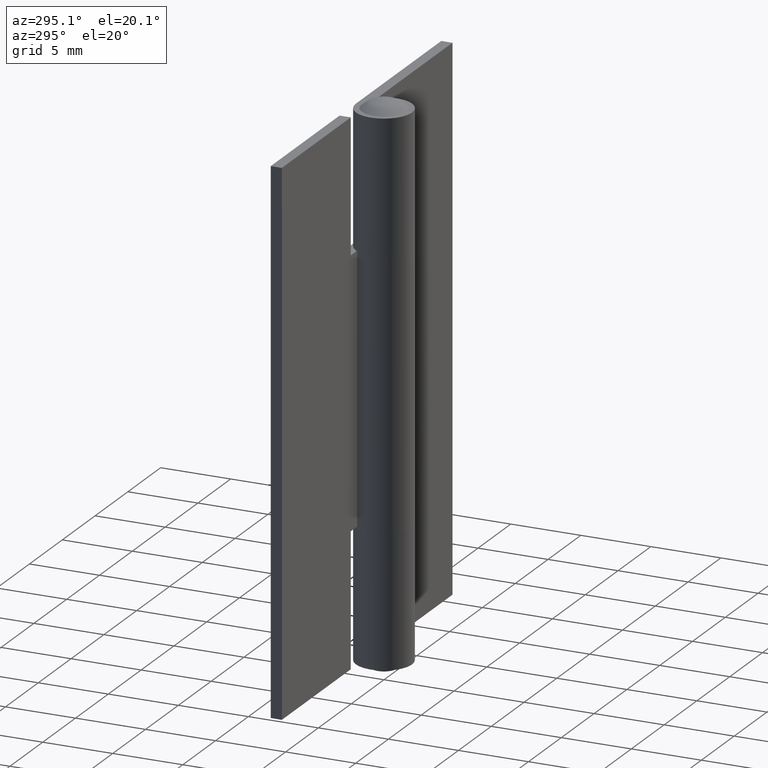
[diagram: clean part render]
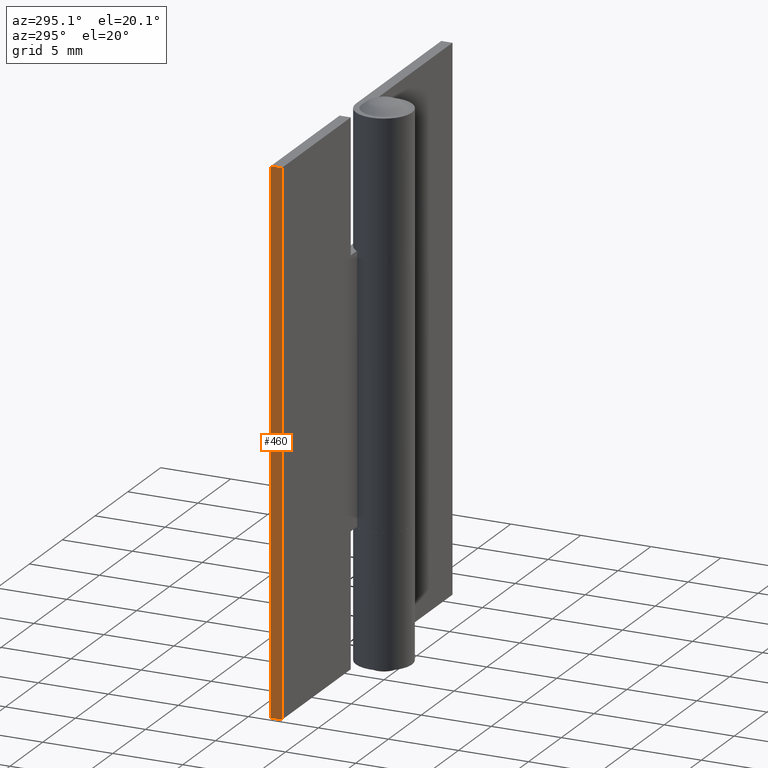
[diagram: same view with one face highlighted and labeled with its STEP entity id]
A machine part, auxiliary view. The second image highlights one B-rep face of the part: STEP entity #460.
In plain terms, the highlighted face is a freeform B-spline surface patch.
Its self-contained STEP definition (entity closure, byte-faithful):
#273=CARTESIAN_POINT('',(-13.0,1.200000000000000,0.0));
#274=VERTEX_POINT('',#273);
#280=CARTESIAN_POINT('',(-13.0,2.0,0.0));
#281=VERTEX_POINT('',#280);
#282=CARTESIAN_POINT('',(-13.0,1.200000000000000,0.0));
#283=CARTESIAN_POINT('',(-13.0,2.0,0.0));
#284=QUASI_UNIFORM_CURVE('',1,(#282,#283),.UNSPECIFIED.,.F.,.U.);
#285=EDGE_CURVE('',#274,#281,#284,.T.);
#300=CARTESIAN_POINT('',(-13.0,1.200000000000000,38.0));
#301=VERTEX_POINT('',#300);
#308=CARTESIAN_POINT('',(-13.0,2.0,38.0));
#309=VERTEX_POINT('',#308);
#315=CARTESIAN_POINT('',(-13.0,1.200000000000000,38.0));
#316=CARTESIAN_POINT('',(-13.0,2.0,38.0));
#317=QUASI_UNIFORM_CURVE('',1,(#315,#316),.UNSPECIFIED.,.F.,.U.);
#318=EDGE_CURVE('',#301,#309,#317,.T.);
#331=CARTESIAN_POINT('',(-13.0,1.200000000000000,38.0));
#332=CARTESIAN_POINT('',(-13.0,1.200000000000000,0.0));
#333=QUASI_UNIFORM_CURVE('',1,(#331,#332),.UNSPECIFIED.,.F.,.U.);
#334=EDGE_CURVE('',#301,#274,#333,.T.);
#439=CARTESIAN_POINT('',(-13.0,2.0,38.0));
#440=CARTESIAN_POINT('',(-13.0,2.0,0.0));
#441=QUASI_UNIFORM_CURVE('',1,(#439,#440),.UNSPECIFIED.,.F.,.U.);
#442=EDGE_CURVE('',#309,#281,#441,.T.);
#449=CARTESIAN_POINT('',(-13.0,1.160040001550555,-1.898099926348628));
#450=CARTESIAN_POINT('',(-13.0,1.160040001550555,39.898100945588048));
#451=CARTESIAN_POINT('',(-13.0,2.039960019907117,-1.898099926348628));
#452=CARTESIAN_POINT('',(-13.0,2.039960019907117,39.898100945588048));
#453=B_SPLINE_SURFACE_WITH_KNOTS('',1,1,((#449,#451),(#450,#452)),.UNSPECIFIED.,.F.,.F.,.U.,(2,2),(2,2),(0.0,41.796200871936684),(0.041708334948495,0.958291687403247),.UNSPECIFIED.);
#454=ORIENTED_EDGE('',*,*,#285,.F.);
#455=ORIENTED_EDGE('',*,*,#334,.F.);
#456=ORIENTED_EDGE('',*,*,#318,.T.);
#457=ORIENTED_EDGE('',*,*,#442,.T.);
#458=EDGE_LOOP('',(#454,#455,#456,#457));
#459=FACE_OUTER_BOUND('',#458,.T.);
#460=ADVANCED_FACE('',(#459),#453,.T.);